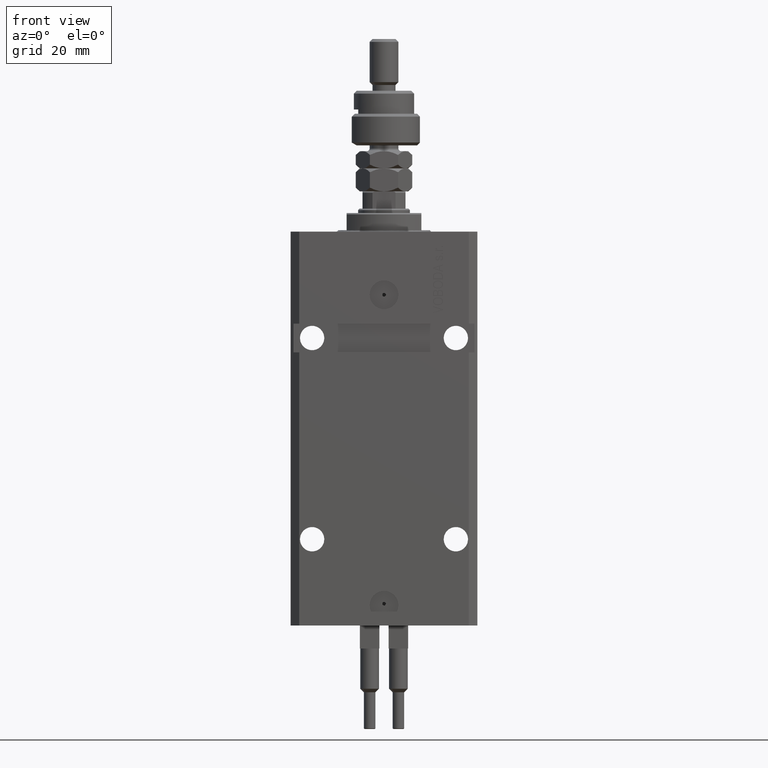
[diagram: clean part render]
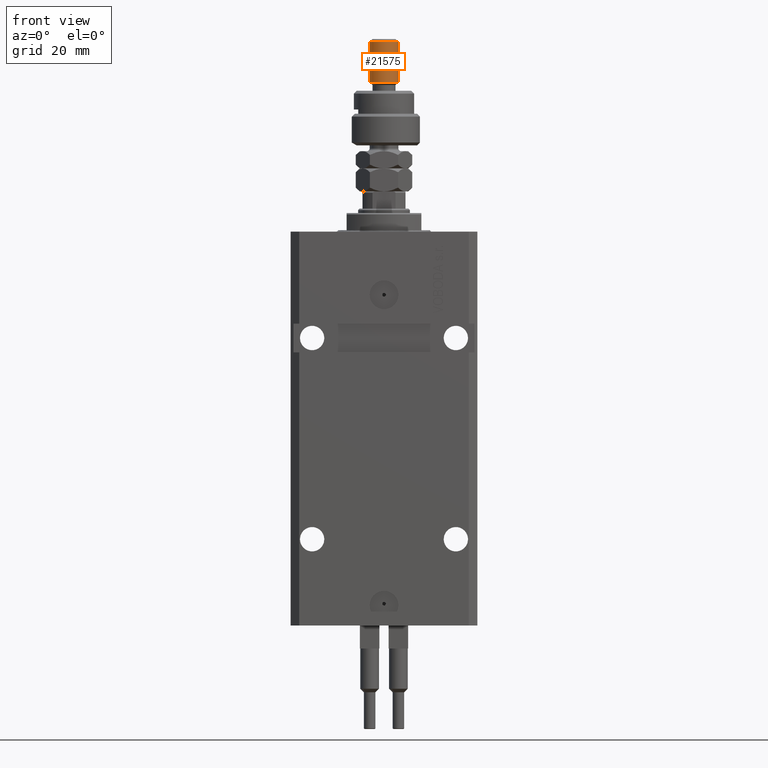
[diagram: same view with one face highlighted and labeled with its STEP entity id]
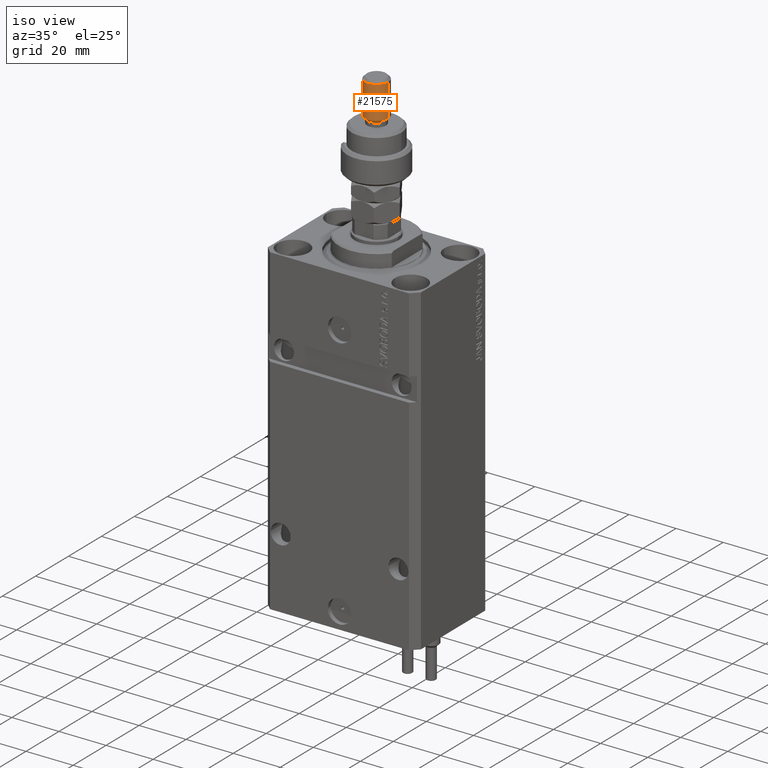
[diagram: same view with one face highlighted and labeled with its STEP entity id]
A machine part, front view. The second image highlights one B-rep face of the part: STEP entity #21575.
A second angle (iso view) of the same face is appended — the face is thin or edge-on in the first view.
In plain terms, the highlighted cylindrical surface (edge-blend (fillet) strip) has radius 5 mm, axis along (-0, -0, -1).
Its self-contained STEP definition (entity closure, byte-faithful):
#748 = EDGE_CURVE ( 'NONE', #48514, #1369, #22086, .T. ) ;
#946 = CIRCLE ( 'NONE', #40606, 5.000000000000000888 ) ;
#1369 = VERTEX_POINT ( 'NONE', #41256 ) ;
#2094 = LINE ( 'NONE', #34778, #39098 ) ;
#3761 = AXIS2_PLACEMENT_3D ( 'NONE', #23438, #50706, #27327 ) ;
#3934 = DIRECTION ( 'NONE',  ( 0.000000000000000000, 0.000000000000000000, -1.000000000000000000 ) ) ;
#9735 = ORIENTED_EDGE ( 'NONE', *, *, #28646, .T. ) ;
#10874 = VERTEX_POINT ( 'NONE', #35275 ) ;
#11161 = ORIENTED_EDGE ( 'NONE', *, *, #748, .F. ) ;
#11506 = FACE_OUTER_BOUND ( 'NONE', #12431, .T. ) ;
#12431 = EDGE_LOOP ( 'NONE', ( #11161, #49492, #32537, #9735 ) ) ;
#15572 = EDGE_CURVE ( 'NONE', #48514, #10874, #946, .T. ) ;
#21575 = ADVANCED_FACE ( 'NONE', ( #11506 ), #42635, .T. ) ;
#22086 = LINE ( 'NONE', #37927, #36989 ) ;
#22886 = CARTESIAN_POINT ( 'NONE',  ( 0.000000000000000000, 0.000000000000000000, 36.00000000000000711 ) ) ;
#23438 = CARTESIAN_POINT ( 'NONE',  ( 0.000000000000000000, 0.000000000000000000, 37.00000000000000000 ) ) ;
#27327 = DIRECTION ( 'NONE',  ( -1.000000000000000000, 0.000000000000000000, 0.000000000000000000 ) ) ;
#28646 = EDGE_CURVE ( 'NONE', #36195, #1369, #42010, .T. ) ;
#29162 = CARTESIAN_POINT ( 'NONE',  ( 0.000000000000000000, 0.000000000000000000, 21.99999999999999289 ) ) ;
#30123 = DIRECTION ( 'NONE',  ( -0.000000000000000000, -0.000000000000000000, -1.000000000000000000 ) ) ;
#31189 = CARTESIAN_POINT ( 'NONE',  ( -5.000000000000000888, 0.000000000000000000, 21.99999999999999289 ) ) ;
#32529 = DIRECTION ( 'NONE',  ( -0.000000000000000000, -0.000000000000000000, 1.000000000000000000 ) ) ;
#32537 = ORIENTED_EDGE ( 'NONE', *, *, #50595, .T. ) ;
#32780 = DIRECTION ( 'NONE',  ( 1.000000000000000000, 0.000000000000000000, 0.000000000000000000 ) ) ;
#34778 = CARTESIAN_POINT ( 'NONE',  ( -5.000000000000000888, 0.000000000000000000, 37.00000000000000000 ) ) ;
#35275 = CARTESIAN_POINT ( 'NONE',  ( -5.000000000000000888, 0.000000000000000000, 36.00000000000000711 ) ) ;
#36195 = VERTEX_POINT ( 'NONE', #31189 ) ;
#36989 = VECTOR ( 'NONE', #50374, 1000.000000000000000 ) ;
#37927 = CARTESIAN_POINT ( 'NONE',  ( 5.000000000000000888, 6.123233995736767268E-16, 37.00000000000000000 ) ) ;
#38969 = DIRECTION ( 'NONE',  ( 1.000000000000000000, 0.000000000000000000, 0.000000000000000000 ) ) ;
#39098 = VECTOR ( 'NONE', #30123, 1000.000000000000000 ) ;
#39507 = AXIS2_PLACEMENT_3D ( 'NONE', #29162, #32529, #32780 ) ;
#40606 = AXIS2_PLACEMENT_3D ( 'NONE', #22886, #3934, #38969 ) ;
#41256 = CARTESIAN_POINT ( 'NONE',  ( 5.000000000000000888, 6.123233995736767268E-16, 21.99999999999999289 ) ) ;
#42010 = CIRCLE ( 'NONE', #39507, 5.000000000000000888 ) ;
#42635 = CYLINDRICAL_SURFACE ( 'NONE', #3761, 5.000000000000000888 ) ;
#43238 = CARTESIAN_POINT ( 'NONE',  ( 5.000000000000000888, 6.123233995736767268E-16, 36.00000000000000711 ) ) ;
#48514 = VERTEX_POINT ( 'NONE', #43238 ) ;
#49492 = ORIENTED_EDGE ( 'NONE', *, *, #15572, .T. ) ;
#50374 = DIRECTION ( 'NONE',  ( -0.000000000000000000, -0.000000000000000000, -1.000000000000000000 ) ) ;
#50595 = EDGE_CURVE ( 'NONE', #10874, #36195, #2094, .T. ) ;
#50706 = DIRECTION ( 'NONE',  ( -0.000000000000000000, -0.000000000000000000, -1.000000000000000000 ) ) ;